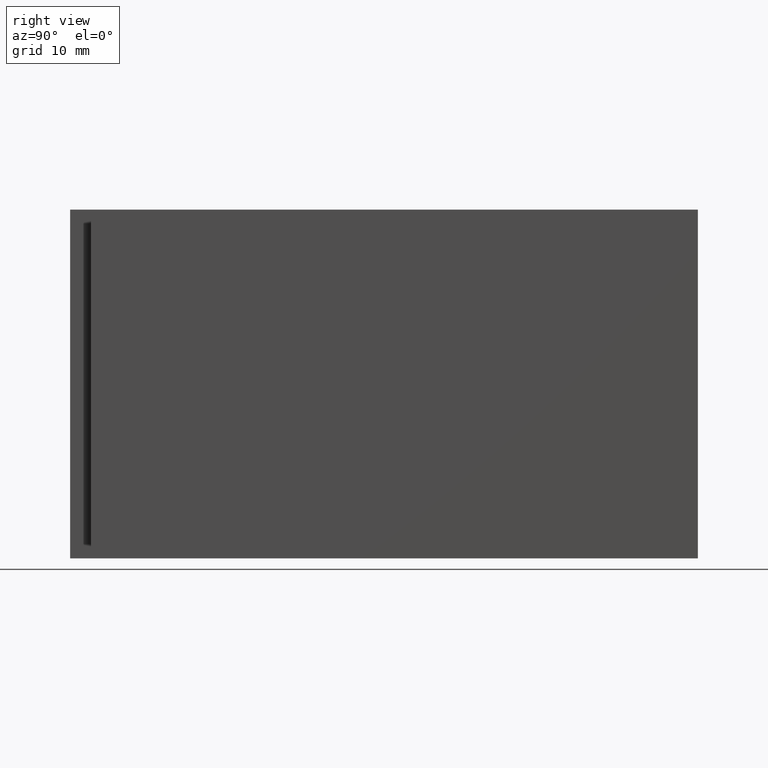
[diagram: clean part render]
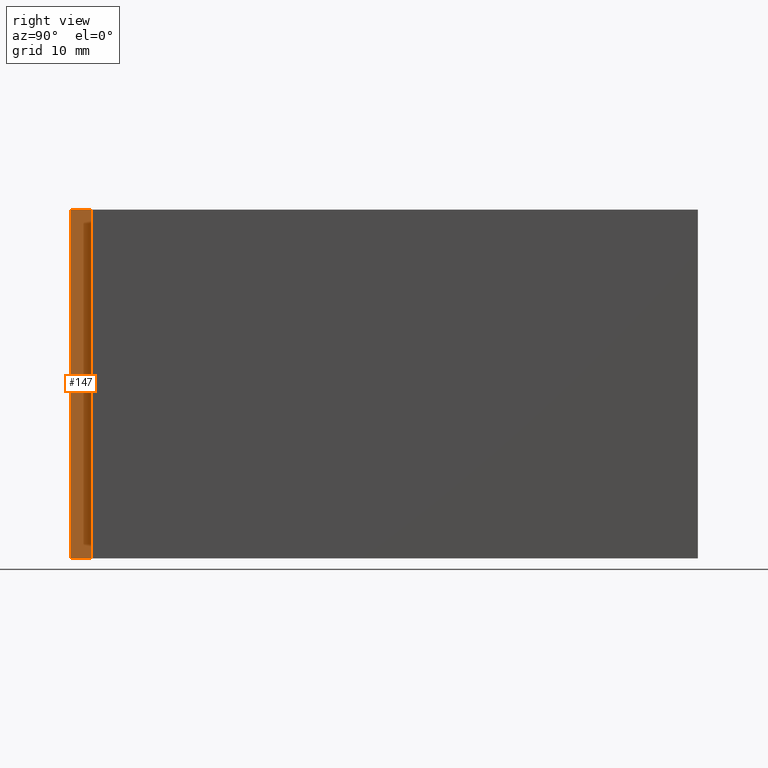
[diagram: same view with one face highlighted and labeled with its STEP entity id]
A machine part, right view. The second image highlights one B-rep face of the part: STEP entity #147.
In plain terms, the highlighted planar face has unit normal (1, -0, 0).
Its self-contained STEP definition (entity closure, byte-faithful):
#21=FACE_OUTER_BOUND('',#29,.T.);
#29=EDGE_LOOP('',(#120,#121,#122,#123));
#32=LINE('',#218,#50);
#46=LINE('',#245,#64);
#47=LINE('',#248,#65);
#48=LINE('',#249,#66);
#50=VECTOR('',#182,10.);
#64=VECTOR('',#204,10.);
#65=VECTOR('',#207,10.);
#66=VECTOR('',#208,10.);
#68=VERTEX_POINT('',#216);
#69=VERTEX_POINT('',#217);
#78=VERTEX_POINT('',#243);
#79=VERTEX_POINT('',#247);
#80=EDGE_CURVE('',#68,#69,#32,.T.);
#94=EDGE_CURVE('',#69,#78,#46,.T.);
#95=EDGE_CURVE('',#78,#79,#47,.T.);
#96=EDGE_CURVE('',#68,#79,#48,.T.);
#120=ORIENTED_EDGE('',*,*,#95,.T.);
#121=ORIENTED_EDGE('',*,*,#96,.F.);
#122=ORIENTED_EDGE('',*,*,#80,.T.);
#123=ORIENTED_EDGE('',*,*,#94,.T.);
#139=PLANE('',#175);
#147=ADVANCED_FACE('',(#21),#139,.T.);
#175=AXIS2_PLACEMENT_3D('',#246,#205,#206);
#182=DIRECTION('',(5.18104078158407E-15,1.,0.));
#204=DIRECTION('',(0.,0.,1.));
#205=DIRECTION('center_axis',(1.,-5.18104078158407E-15,0.));
#206=DIRECTION('ref_axis',(0.,0.,-1.));
#207=DIRECTION('',(-5.18104078158407E-15,-1.,0.));
#208=DIRECTION('',(0.,0.,1.));
#216=CARTESIAN_POINT('',(3.00000000000002,-45.,-25.));
#217=CARTESIAN_POINT('',(3.00000000000004,-42.,-25.));
#218=CARTESIAN_POINT('',(3.00000000000002,-45.,-25.));
#243=CARTESIAN_POINT('',(3.00000000000004,-42.,25.));
#245=CARTESIAN_POINT('',(3.00000000000004,-42.,0.));
#246=CARTESIAN_POINT('Origin',(3.00000000000004,-42.,0.));
#247=CARTESIAN_POINT('',(3.00000000000002,-45.,25.));
#248=CARTESIAN_POINT('',(3.00000000000002,-45.,25.));
#249=CARTESIAN_POINT('',(3.00000000000002,-45.,0.));